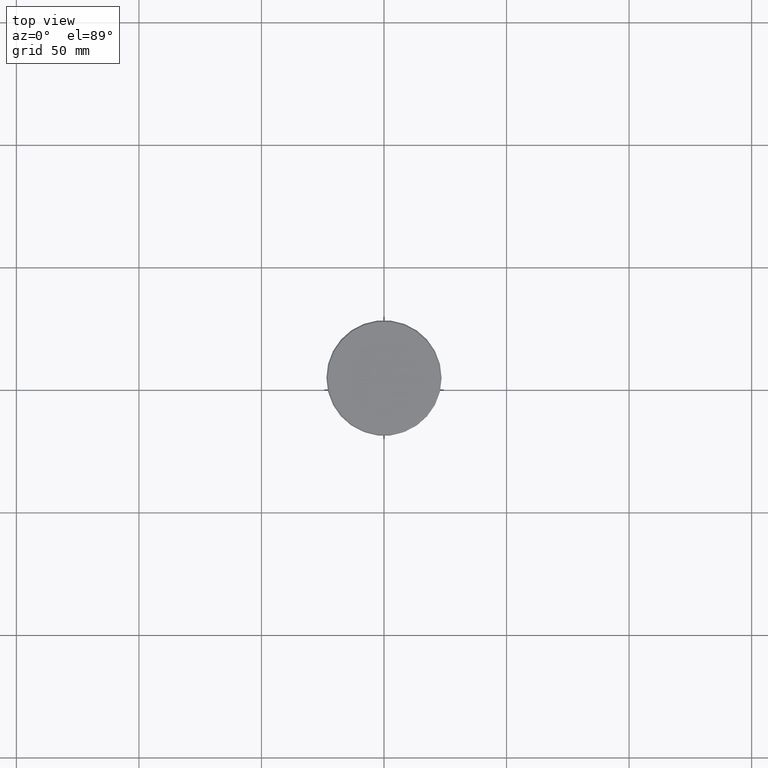
[diagram: clean part render]
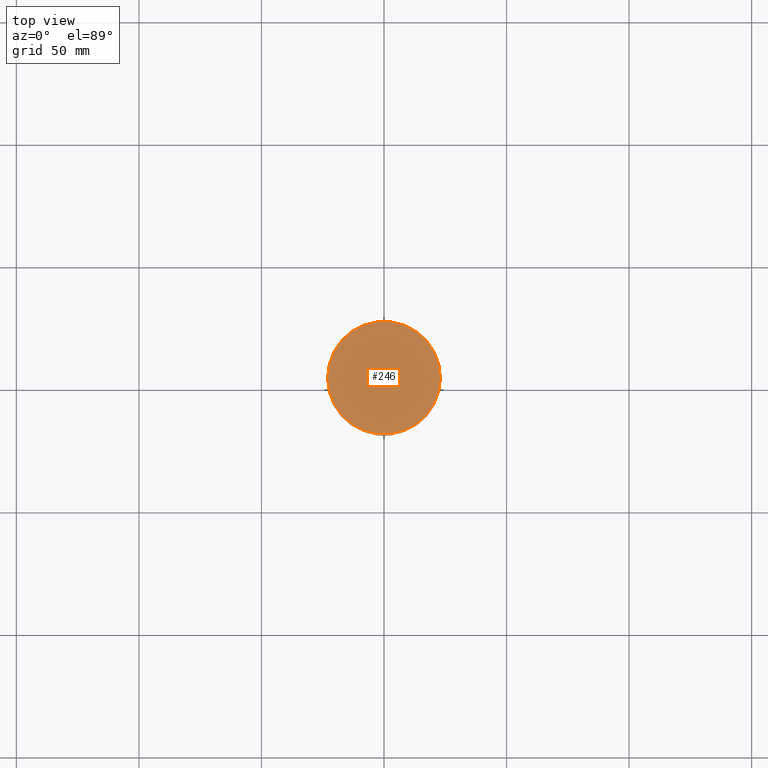
[diagram: same view with one face highlighted and labeled with its STEP entity id]
A machine part, top view. The second image highlights one B-rep face of the part: STEP entity #246.
In plain terms, the highlighted planar face has unit normal (0, -0, 1).
Its self-contained STEP definition (entity closure, byte-faithful):
#23 = DIRECTION ( 'NONE',  ( 0.000000000000000000, -0.000000000000000000, 1.000000000000000000 ) ) ;
#25 = CIRCLE ( 'NONE', #41, 22.99999999999999645 ) ;
#30 = EDGE_CURVE ( 'NONE', #706, #941, #25, .T. ) ;
#41 = AXIS2_PLACEMENT_3D ( 'NONE', #674, #208, #576 ) ;
#56 = DIRECTION ( 'NONE',  ( 1.000000000000000000, 0.000000000000000000, 0.000000000000000000 ) ) ;
#85 = AXIS2_PLACEMENT_3D ( 'NONE', #972, #506, #56 ) ;
#104 = ORIENTED_EDGE ( 'NONE', *, *, #1159, .T. ) ;
#113 = DIRECTION ( 'NONE',  ( 1.000000000000000000, 0.000000000000000000, 0.000000000000000000 ) ) ;
#159 = CIRCLE ( 'NONE', #85, 22.99999999999999645 ) ;
#208 = DIRECTION ( 'NONE',  ( -0.000000000000000000, -0.000000000000000000, 1.000000000000000000 ) ) ;
#210 = CARTESIAN_POINT ( 'NONE',  ( -22.99999999999999645, 0.000000000000000000, 0.000000000000000000 ) ) ;
#246 = ADVANCED_FACE ( 'NONE', ( #616 ), #283, .T. ) ;
#283 = PLANE ( 'NONE',  #342 ) ;
#342 = AXIS2_PLACEMENT_3D ( 'NONE', #661, #23, #113 ) ;
#434 = CARTESIAN_POINT ( 'NONE',  ( 22.99999999999999645, 2.847303808017596139E-15, 0.000000000000000000 ) ) ;
#506 = DIRECTION ( 'NONE',  ( -0.000000000000000000, -0.000000000000000000, 1.000000000000000000 ) ) ;
#576 = DIRECTION ( 'NONE',  ( 1.000000000000000000, 0.000000000000000000, 0.000000000000000000 ) ) ;
#616 = FACE_OUTER_BOUND ( 'NONE', #750, .T. ) ;
#639 = ORIENTED_EDGE ( 'NONE', *, *, #30, .T. ) ;
#661 = CARTESIAN_POINT ( 'NONE',  ( 0.000000000000000000, 0.000000000000000000, 0.000000000000000000 ) ) ;
#674 = CARTESIAN_POINT ( 'NONE',  ( 0.000000000000000000, 0.000000000000000000, 0.000000000000000000 ) ) ;
#706 = VERTEX_POINT ( 'NONE', #210 ) ;
#750 = EDGE_LOOP ( 'NONE', ( #639, #104 ) ) ;
#941 = VERTEX_POINT ( 'NONE', #434 ) ;
#972 = CARTESIAN_POINT ( 'NONE',  ( 0.000000000000000000, 0.000000000000000000, 0.000000000000000000 ) ) ;
#1159 = EDGE_CURVE ( 'NONE', #941, #706, #159, .T. ) ;